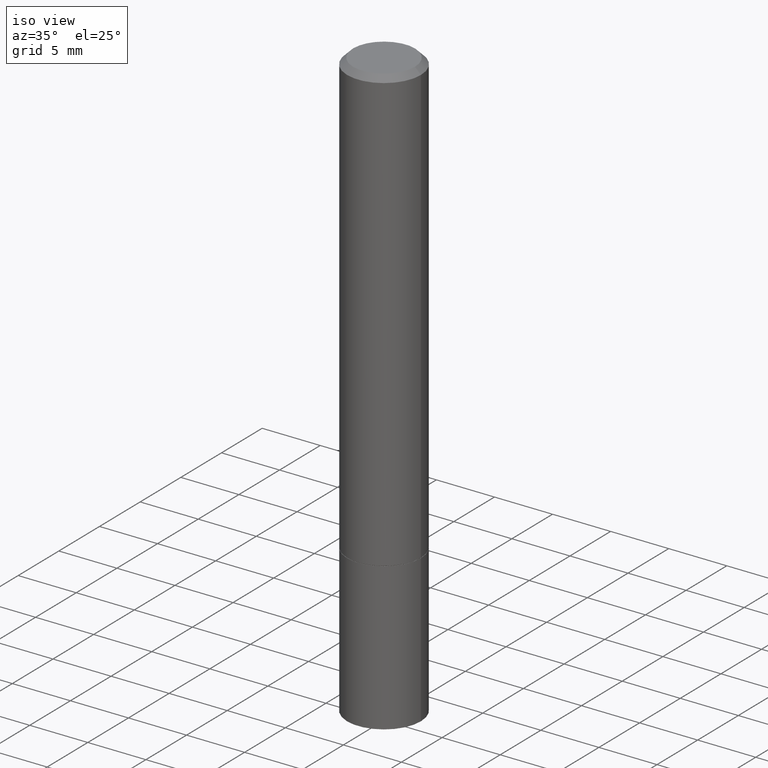
[diagram: clean part render]
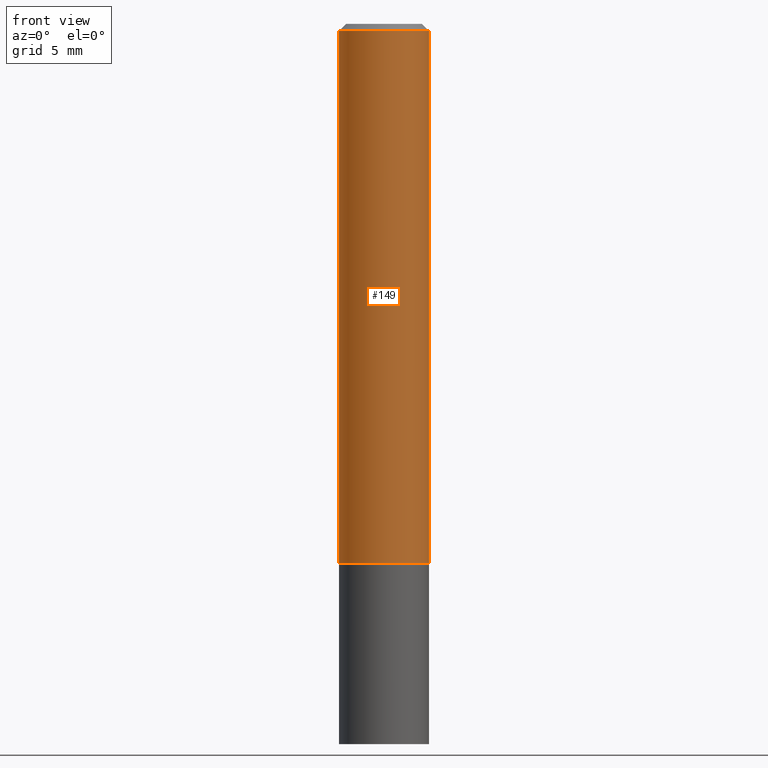
[diagram: tour spotlight — one face highlighted and labeled with its STEP entity id]
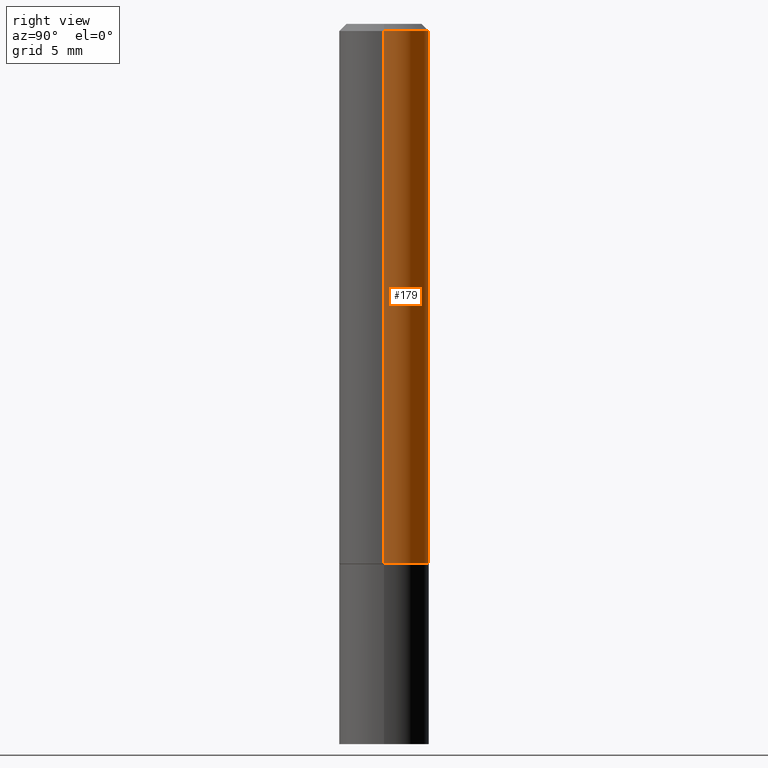
[diagram: tour spotlight — one face highlighted and labeled with its STEP entity id]
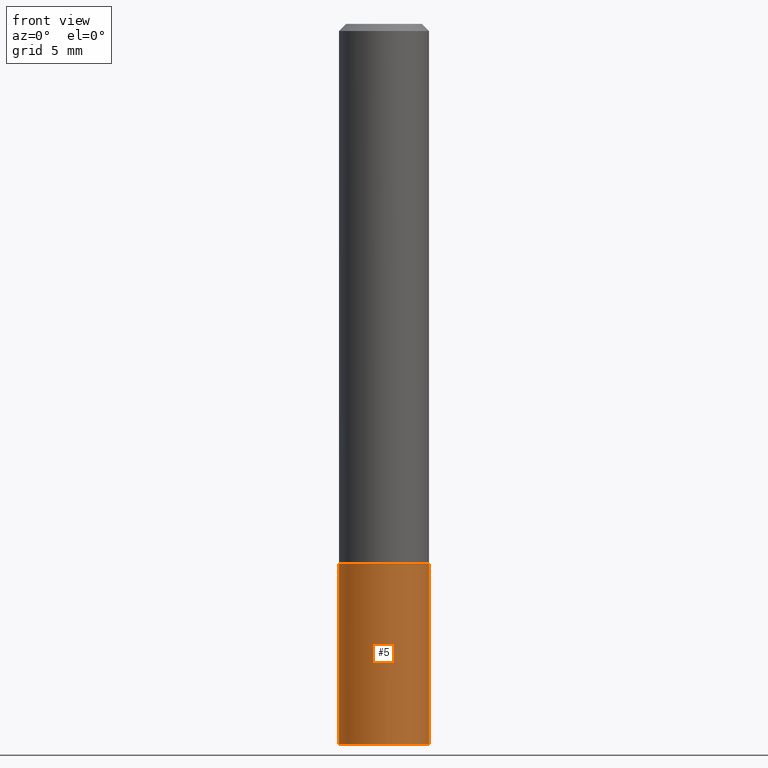
[diagram: tour spotlight — one face highlighted and labeled with its STEP entity id]
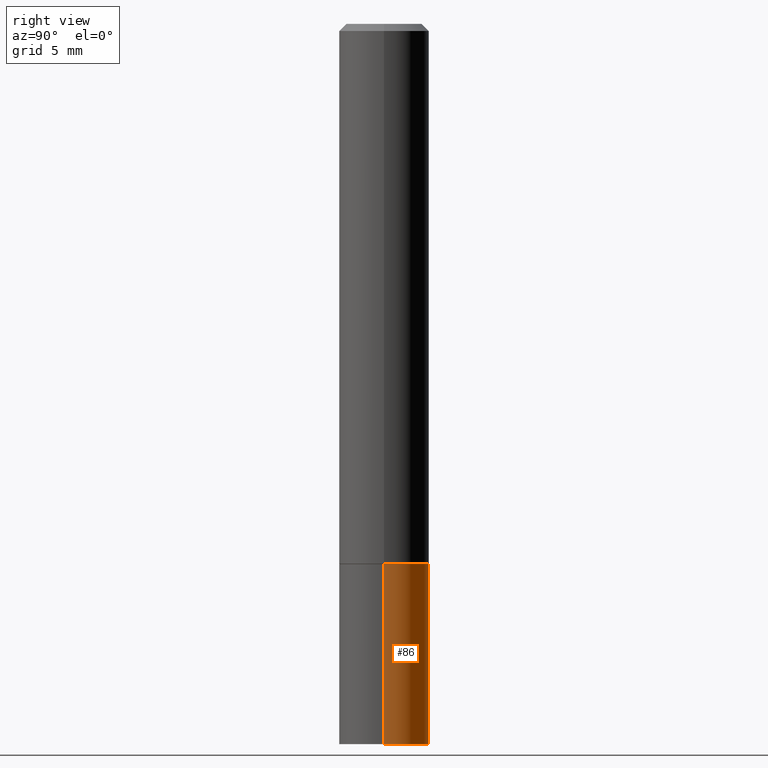
[diagram: tour spotlight — one face highlighted and labeled with its STEP entity id]
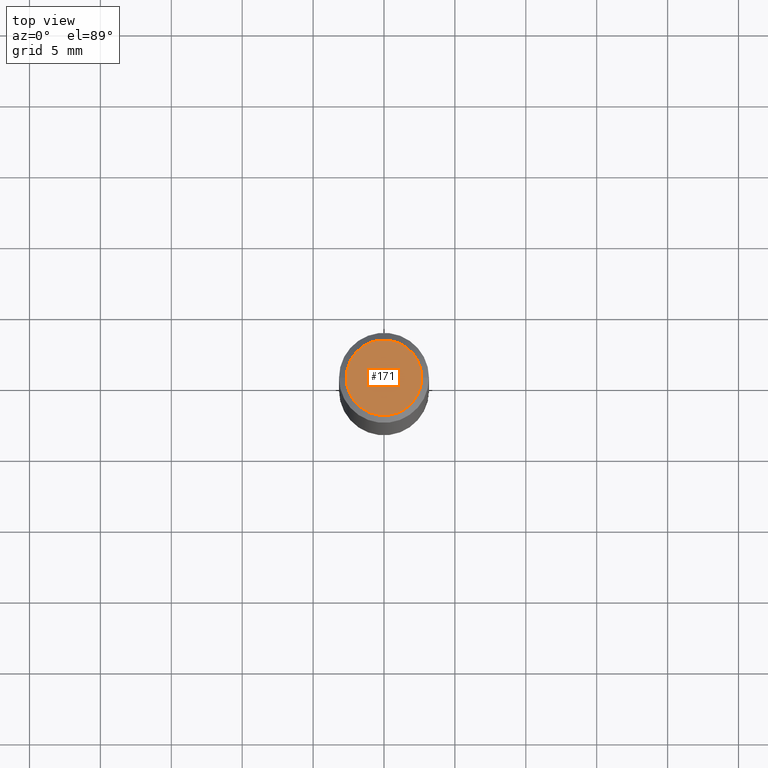
[diagram: tour spotlight — one face highlighted and labeled with its STEP entity id]
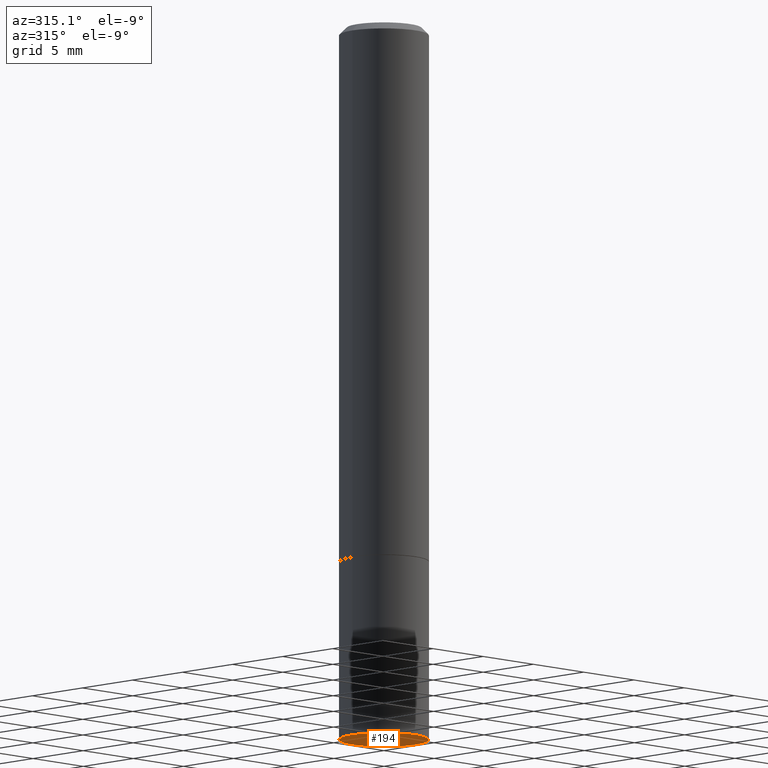
[diagram: tour spotlight — one face highlighted and labeled with its STEP entity id]
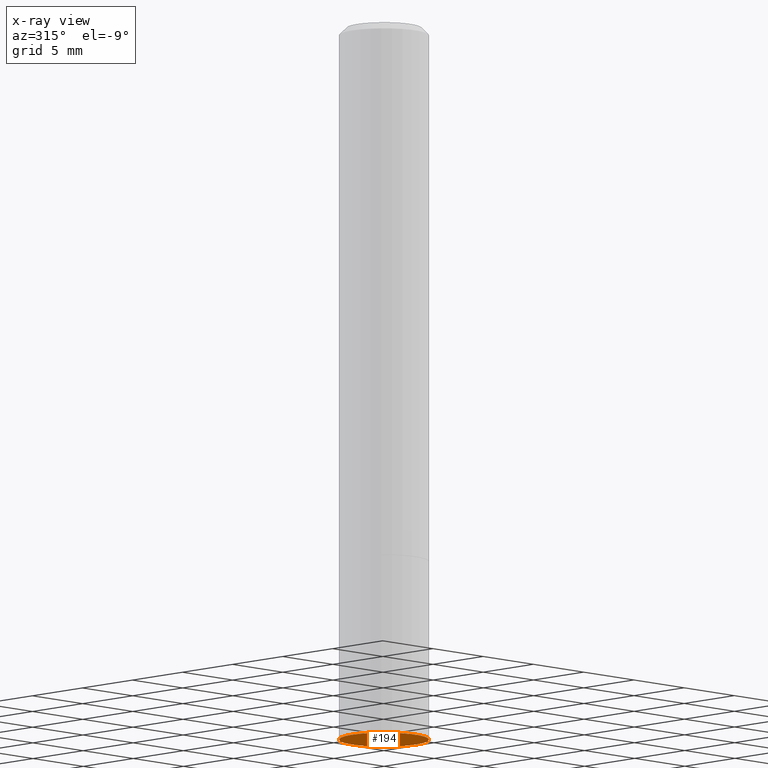
[diagram: x-ray of the same camera — body ghosted, this tour face saturated]
A machine part: a face-by-face anatomy tour. The part has 12 B-rep faces; the first image is the clean iso view, then the 6 largest visible faces are spotlighted one at a time (largest first), each with its STEP entity span.

Face 1 — front view, entity #149. In plain terms, the highlighted cylindrical surface (partial cylindrical patch) has radius 3.175 mm, axis along (-0, 0, 1).
Definition (entity closure, byte-faithful):
#1 = AXIS2_PLACEMENT_3D ( 'NONE', #285, #280, #168 ) ;
#4 = LINE ( 'NONE', #116, #185 ) ;
#6 = FACE_OUTER_BOUND ( 'NONE', #169, .T. ) ;
#7 = ORIENTED_EDGE ( 'NONE', *, *, #37, .T. ) ;
#25 = CARTESIAN_POINT ( 'NONE',  ( 3.665757740471518732E-29, -5.233730526925875170E-15, -1.498999999999999666 ) ) ;
#28 = DIRECTION ( 'NONE',  ( -2.445468806185136597E-29, 3.491481338843145583E-15, 1.000000000000000000 ) ) ;
#36 = AXIS2_PLACEMENT_3D ( 'NONE', #41, #217, #184 ) ;
#37 = EDGE_CURVE ( 'NONE', #39, #329, #174, .T. ) ;
#39 = VERTEX_POINT ( 'NONE', #237 ) ;
#41 = CARTESIAN_POINT ( 'NONE',  ( 0.000000000000000000, 0.000000000000000000, 0.000000000000000000 ) ) ;
#49 = DIRECTION ( 'NONE',  ( 1.000000000000000000, -6.982962677686270655E-15, 0.000000000000000000 ) ) ;
#116 = CARTESIAN_POINT ( 'NONE',  ( 0.1249999999999999167, -8.728703347107827472E-16, 6.095220969744915537E-30 ) ) ;
#122 = CYLINDRICAL_SURFACE ( 'NONE', #36, 0.1249999999999999167 ) ;
#149 = ADVANCED_FACE ( 'NONE', ( #6 ), #122, .T. ) ;
#168 = DIRECTION ( 'NONE',  ( 1.000000000000000000, -6.982962677686266711E-15, 0.000000000000000000 ) ) ;
#169 = EDGE_LOOP ( 'NONE', ( #332, #7, #331, #351 ) ) ;
#174 = CIRCLE ( 'NONE', #326, 0.1250000000000000000 ) ;
#184 = DIRECTION ( 'NONE',  ( 1.000000000000000000, -6.982962677686266711E-15, 4.876176775795935793E-29 ) ) ;
#185 = VECTOR ( 'NONE', #210, 39.37007874015748143 ) ;
#207 = CARTESIAN_POINT ( 'NONE',  ( 0.1250000000000000000, -6.106600861636658508E-15, -1.498999999999999666 ) ) ;
#210 = DIRECTION ( 'NONE',  ( -2.445468806185136877E-29, 3.491481338843145188E-15, 1.000000000000000000 ) ) ;
#217 = DIRECTION ( 'NONE',  ( -2.445468806185136597E-29, 3.491481338843145583E-15, 1.000000000000000000 ) ) ;
#230 = CARTESIAN_POINT ( 'NONE',  ( 0.1249999999999998335, -9.273918764983031658E-16, -0.02000000000000002470 ) ) ;
#232 = VERTEX_POINT ( 'NONE', #230 ) ;
#237 = CARTESIAN_POINT ( 'NONE',  ( -0.1250000000000000000, -1.763601657151241635E-15, -1.498999999999999666 ) ) ;
#252 = CARTESIAN_POINT ( 'NONE',  ( -0.1249999999999999167, 8.881784197001246407E-16, -6.148668862818628023E-30 ) ) ;
#266 = EDGE_CURVE ( 'NONE', #329, #232, #4, .T. ) ;
#280 = DIRECTION ( 'NONE',  ( -2.445468806185136597E-29, 3.491481338843145583E-15, 1.000000000000000000 ) ) ;
#285 = CARTESIAN_POINT ( 'NONE',  ( 4.890937612370279289E-31, -6.982962677686299005E-17, -0.02000000000000002470 ) ) ;
#289 = VECTOR ( 'NONE', #316, 39.37007874015748143 ) ;
#291 = CARTESIAN_POINT ( 'NONE',  ( -0.1249999999999998335, 8.030407079339191532E-16, -0.02000000000000002470 ) ) ;
#294 = CIRCLE ( 'NONE', #1, 0.1249999999999998335 ) ;
#316 = DIRECTION ( 'NONE',  ( -2.445468806185136877E-29, 3.491481338843145188E-15, 1.000000000000000000 ) ) ;
#324 = EDGE_CURVE ( 'NONE', #346, #232, #294, .T. ) ;
#326 = AXIS2_PLACEMENT_3D ( 'NONE', #25, #28, #49 ) ;
#329 = VERTEX_POINT ( 'NONE', #207 ) ;
#331 = ORIENTED_EDGE ( 'NONE', *, *, #266, .T. ) ;
#332 = ORIENTED_EDGE ( 'NONE', *, *, #352, .F. ) ;
#339 = LINE ( 'NONE', #252, #289 ) ;
#346 = VERTEX_POINT ( 'NONE', #291 ) ;
#351 = ORIENTED_EDGE ( 'NONE', *, *, #324, .F. ) ;
#352 = EDGE_CURVE ( 'NONE', #39, #346, #339, .T. ) ;

Face 2 — right view, entity #179. In plain terms, the highlighted cylindrical surface (partial cylindrical patch) has radius 3.175 mm, axis along (-0, 0, 1).
Definition (entity closure, byte-faithful):
#4 = LINE ( 'NONE', #116, #185 ) ;
#39 = VERTEX_POINT ( 'NONE', #237 ) ;
#55 = CYLINDRICAL_SURFACE ( 'NONE', #196, 0.1249999999999999167 ) ;
#69 = DIRECTION ( 'NONE',  ( 1.000000000000000000, -6.982962677686266711E-15, 0.000000000000000000 ) ) ;
#89 = CARTESIAN_POINT ( 'NONE',  ( 0.000000000000000000, 0.000000000000000000, 0.000000000000000000 ) ) ;
#106 = EDGE_CURVE ( 'NONE', #232, #346, #287, .T. ) ;
#116 = CARTESIAN_POINT ( 'NONE',  ( 0.1249999999999999167, -8.728703347107827472E-16, 6.095220969744915537E-30 ) ) ;
#125 = ORIENTED_EDGE ( 'NONE', *, *, #352, .T. ) ;
#129 = DIRECTION ( 'NONE',  ( -2.445468806185136597E-29, 3.491481338843145583E-15, 1.000000000000000000 ) ) ;
#160 = AXIS2_PLACEMENT_3D ( 'NONE', #319, #212, #69 ) ;
#162 = DIRECTION ( 'NONE',  ( 1.000000000000000000, -6.982962677686266711E-15, 4.876176775795935793E-29 ) ) ;
#173 = CARTESIAN_POINT ( 'NONE',  ( 3.665757740471518732E-29, -5.233730526925875170E-15, -1.498999999999999666 ) ) ;
#179 = ADVANCED_FACE ( 'NONE', ( #330 ), #55, .T. ) ;
#182 = ORIENTED_EDGE ( 'NONE', *, *, #106, .F. ) ;
#185 = VECTOR ( 'NONE', #210, 39.37007874015748143 ) ;
#196 = AXIS2_PLACEMENT_3D ( 'NONE', #89, #129, #162 ) ;
#205 = CIRCLE ( 'NONE', #219, 0.1250000000000000000 ) ;
#207 = CARTESIAN_POINT ( 'NONE',  ( 0.1250000000000000000, -6.106600861636658508E-15, -1.498999999999999666 ) ) ;
#210 = DIRECTION ( 'NONE',  ( -2.445468806185136877E-29, 3.491481338843145188E-15, 1.000000000000000000 ) ) ;
#212 = DIRECTION ( 'NONE',  ( -2.445468806185136597E-29, 3.491481338843145583E-15, 1.000000000000000000 ) ) ;
#219 = AXIS2_PLACEMENT_3D ( 'NONE', #173, #286, #262 ) ;
#230 = CARTESIAN_POINT ( 'NONE',  ( 0.1249999999999998335, -9.273918764983031658E-16, -0.02000000000000002470 ) ) ;
#232 = VERTEX_POINT ( 'NONE', #230 ) ;
#237 = CARTESIAN_POINT ( 'NONE',  ( -0.1250000000000000000, -1.763601657151241635E-15, -1.498999999999999666 ) ) ;
#244 = EDGE_CURVE ( 'NONE', #329, #39, #205, .T. ) ;
#252 = CARTESIAN_POINT ( 'NONE',  ( -0.1249999999999999167, 8.881784197001246407E-16, -6.148668862818628023E-30 ) ) ;
#262 = DIRECTION ( 'NONE',  ( 1.000000000000000000, -6.982962677686270655E-15, 0.000000000000000000 ) ) ;
#266 = EDGE_CURVE ( 'NONE', #329, #232, #4, .T. ) ;
#271 = ORIENTED_EDGE ( 'NONE', *, *, #244, .T. ) ;
#284 = ORIENTED_EDGE ( 'NONE', *, *, #266, .F. ) ;
#286 = DIRECTION ( 'NONE',  ( -2.445468806185136597E-29, 3.491481338843145583E-15, 1.000000000000000000 ) ) ;
#287 = CIRCLE ( 'NONE', #160, 0.1249999999999998335 ) ;
#289 = VECTOR ( 'NONE', #316, 39.37007874015748143 ) ;
#291 = CARTESIAN_POINT ( 'NONE',  ( -0.1249999999999998335, 8.030407079339191532E-16, -0.02000000000000002470 ) ) ;
#308 = EDGE_LOOP ( 'NONE', ( #271, #125, #182, #284 ) ) ;
#316 = DIRECTION ( 'NONE',  ( -2.445468806185136877E-29, 3.491481338843145188E-15, 1.000000000000000000 ) ) ;
#319 = CARTESIAN_POINT ( 'NONE',  ( 4.890937612370279289E-31, -6.982962677686299005E-17, -0.02000000000000002470 ) ) ;
#329 = VERTEX_POINT ( 'NONE', #207 ) ;
#330 = FACE_OUTER_BOUND ( 'NONE', #308, .T. ) ;
#339 = LINE ( 'NONE', #252, #289 ) ;
#346 = VERTEX_POINT ( 'NONE', #291 ) ;
#352 = EDGE_CURVE ( 'NONE', #39, #346, #339, .T. ) ;

Face 3 — front view, entity #5. In plain terms, the highlighted cylindrical surface (partial cylindrical patch) has radius 3.175 mm, axis along (-0, 0, 1).
Definition (entity closure, byte-faithful):
#3 = DIRECTION ( 'NONE',  ( 1.000000000000000000, -6.982962677686270655E-15, 0.000000000000000000 ) ) ;
#5 = ADVANCED_FACE ( 'NONE', ( #355 ), #79, .T. ) ;
#9 = VECTOR ( 'NONE', #136, 39.37007874015748143 ) ;
#22 = LINE ( 'NONE', #62, #9 ) ;
#29 = CIRCLE ( 'NONE', #70, 0.1250000000000000000 ) ;
#54 = CARTESIAN_POINT ( 'NONE',  ( 0.1250000000000000000, -6.110092342975501516E-15, -1.499999999999999778 ) ) ;
#56 = VERTEX_POINT ( 'NONE', #54 ) ;
#62 = CARTESIAN_POINT ( 'NONE',  ( 0.1250000000000000000, -8.728703347107833388E-16, 6.095220969744919741E-30 ) ) ;
#63 = DIRECTION ( 'NONE',  ( -2.445468806185136597E-29, 3.491481338843145583E-15, 1.000000000000000000 ) ) ;
#70 = AXIS2_PLACEMENT_3D ( 'NONE', #307, #81, #78 ) ;
#75 = AXIS2_PLACEMENT_3D ( 'NONE', #317, #63, #3 ) ;
#78 = DIRECTION ( 'NONE',  ( 1.000000000000000000, -6.982962677686270655E-15, 0.000000000000000000 ) ) ;
#79 = CYLINDRICAL_SURFACE ( 'NONE', #298, 0.1250000000000000000 ) ;
#81 = DIRECTION ( 'NONE',  ( -2.445468806185136597E-29, 3.491481338843145583E-15, 1.000000000000000000 ) ) ;
#85 = ORIENTED_EDGE ( 'NONE', *, *, #92, .F. ) ;
#92 = EDGE_CURVE ( 'NONE', #349, #138, #198, .T. ) ;
#96 = ORIENTED_EDGE ( 'NONE', *, *, #119, .T. ) ;
#107 = DIRECTION ( 'NONE',  ( -2.445468806185136597E-29, 3.491481338843145583E-15, 1.000000000000000000 ) ) ;
#119 = EDGE_CURVE ( 'NONE', #349, #186, #320, .T. ) ;
#136 = DIRECTION ( 'NONE',  ( -2.445468806185136877E-29, 3.491481338843145188E-15, 1.000000000000000000 ) ) ;
#138 = VERTEX_POINT ( 'NONE', #270 ) ;
#155 = EDGE_CURVE ( 'NONE', #138, #56, #29, .T. ) ;
#157 = ORIENTED_EDGE ( 'NONE', *, *, #155, .F. ) ;
#167 = DIRECTION ( 'NONE',  ( 1.000000000000000000, -6.982962677686266711E-15, 4.876176775795935793E-29 ) ) ;
#186 = VERTEX_POINT ( 'NONE', #278 ) ;
#198 = LINE ( 'NONE', #335, #228 ) ;
#228 = VECTOR ( 'NONE', #255, 39.37007874015748143 ) ;
#255 = DIRECTION ( 'NONE',  ( -2.445468806185136877E-29, 3.491481338843145188E-15, 1.000000000000000000 ) ) ;
#256 = CARTESIAN_POINT ( 'NONE',  ( -0.1250000000000000000, -5.221913923275378650E-15, -2.000000000000000000 ) ) ;
#257 = EDGE_LOOP ( 'NONE', ( #85, #96, #365, #157 ) ) ;
#270 = CARTESIAN_POINT ( 'NONE',  ( -0.1250000000000000000, -5.221913923275378650E-15, -1.499999999999999778 ) ) ;
#278 = CARTESIAN_POINT ( 'NONE',  ( 0.1250000000000000000, -7.855833012397075293E-15, -2.000000000000000000 ) ) ;
#298 = AXIS2_PLACEMENT_3D ( 'NONE', #312, #107, #167 ) ;
#307 = CARTESIAN_POINT ( 'NONE',  ( 3.668203209277704335E-29, -5.237222008264717388E-15, -1.499999999999999778 ) ) ;
#312 = CARTESIAN_POINT ( 'NONE',  ( 0.000000000000000000, 0.000000000000000000, 0.000000000000000000 ) ) ;
#317 = CARTESIAN_POINT ( 'NONE',  ( 4.890937612370273194E-29, -6.982962677686291165E-15, -2.000000000000000000 ) ) ;
#320 = CIRCLE ( 'NONE', #75, 0.1250000000000000000 ) ;
#335 = CARTESIAN_POINT ( 'NONE',  ( -0.1250000000000000000, 8.881784197001252323E-16, -6.148668862818632227E-30 ) ) ;
#349 = VERTEX_POINT ( 'NONE', #256 ) ;
#355 = FACE_OUTER_BOUND ( 'NONE', #257, .T. ) ;
#361 = EDGE_CURVE ( 'NONE', #186, #56, #22, .T. ) ;
#365 = ORIENTED_EDGE ( 'NONE', *, *, #361, .T. ) ;

Face 4 — right view, entity #86. In plain terms, the highlighted cylindrical surface (partial cylindrical patch) has radius 3.175 mm, axis along (-0, 0, 1).
Definition (entity closure, byte-faithful):
#9 = VECTOR ( 'NONE', #136, 39.37007874015748143 ) ;
#18 = CARTESIAN_POINT ( 'NONE',  ( 4.890937612370273194E-29, -6.982962677686291165E-15, -2.000000000000000000 ) ) ;
#21 = FACE_OUTER_BOUND ( 'NONE', #123, .T. ) ;
#22 = LINE ( 'NONE', #62, #9 ) ;
#23 = AXIS2_PLACEMENT_3D ( 'NONE', #277, #227, #250 ) ;
#46 = ORIENTED_EDGE ( 'NONE', *, *, #92, .T. ) ;
#50 = CIRCLE ( 'NONE', #304, 0.1250000000000000000 ) ;
#51 = DIRECTION ( 'NONE',  ( -2.445468806185136597E-29, 3.491481338843145583E-15, 1.000000000000000000 ) ) ;
#54 = CARTESIAN_POINT ( 'NONE',  ( 0.1250000000000000000, -6.110092342975501516E-15, -1.499999999999999778 ) ) ;
#56 = VERTEX_POINT ( 'NONE', #54 ) ;
#62 = CARTESIAN_POINT ( 'NONE',  ( 0.1250000000000000000, -8.728703347107833388E-16, 6.095220969744919741E-30 ) ) ;
#67 = EDGE_CURVE ( 'NONE', #186, #349, #313, .T. ) ;
#86 = ADVANCED_FACE ( 'NONE', ( #21 ), #306, .T. ) ;
#87 = DIRECTION ( 'NONE',  ( 1.000000000000000000, -6.982962677686270655E-15, 0.000000000000000000 ) ) ;
#88 = ORIENTED_EDGE ( 'NONE', *, *, #67, .T. ) ;
#92 = EDGE_CURVE ( 'NONE', #349, #138, #198, .T. ) ;
#123 = EDGE_LOOP ( 'NONE', ( #88, #46, #188, #165 ) ) ;
#136 = DIRECTION ( 'NONE',  ( -2.445468806185136877E-29, 3.491481338843145188E-15, 1.000000000000000000 ) ) ;
#138 = VERTEX_POINT ( 'NONE', #270 ) ;
#145 = AXIS2_PLACEMENT_3D ( 'NONE', #18, #337, #87 ) ;
#165 = ORIENTED_EDGE ( 'NONE', *, *, #361, .F. ) ;
#178 = EDGE_CURVE ( 'NONE', #56, #138, #50, .T. ) ;
#186 = VERTEX_POINT ( 'NONE', #278 ) ;
#188 = ORIENTED_EDGE ( 'NONE', *, *, #178, .F. ) ;
#198 = LINE ( 'NONE', #335, #228 ) ;
#221 = DIRECTION ( 'NONE',  ( 1.000000000000000000, -6.982962677686270655E-15, 0.000000000000000000 ) ) ;
#227 = DIRECTION ( 'NONE',  ( -2.445468806185136597E-29, 3.491481338843145583E-15, 1.000000000000000000 ) ) ;
#228 = VECTOR ( 'NONE', #255, 39.37007874015748143 ) ;
#250 = DIRECTION ( 'NONE',  ( 1.000000000000000000, -6.982962677686266711E-15, 4.876176775795935793E-29 ) ) ;
#255 = DIRECTION ( 'NONE',  ( -2.445468806185136877E-29, 3.491481338843145188E-15, 1.000000000000000000 ) ) ;
#256 = CARTESIAN_POINT ( 'NONE',  ( -0.1250000000000000000, -5.221913923275378650E-15, -2.000000000000000000 ) ) ;
#263 = CARTESIAN_POINT ( 'NONE',  ( 3.668203209277704335E-29, -5.237222008264717388E-15, -1.499999999999999778 ) ) ;
#270 = CARTESIAN_POINT ( 'NONE',  ( -0.1250000000000000000, -5.221913923275378650E-15, -1.499999999999999778 ) ) ;
#277 = CARTESIAN_POINT ( 'NONE',  ( 0.000000000000000000, 0.000000000000000000, 0.000000000000000000 ) ) ;
#278 = CARTESIAN_POINT ( 'NONE',  ( 0.1250000000000000000, -7.855833012397075293E-15, -2.000000000000000000 ) ) ;
#304 = AXIS2_PLACEMENT_3D ( 'NONE', #263, #51, #221 ) ;
#306 = CYLINDRICAL_SURFACE ( 'NONE', #23, 0.1250000000000000000 ) ;
#313 = CIRCLE ( 'NONE', #145, 0.1250000000000000000 ) ;
#335 = CARTESIAN_POINT ( 'NONE',  ( -0.1250000000000000000, 8.881784197001252323E-16, -6.148668862818632227E-30 ) ) ;
#337 = DIRECTION ( 'NONE',  ( -2.445468806185136597E-29, 3.491481338843145583E-15, 1.000000000000000000 ) ) ;
#349 = VERTEX_POINT ( 'NONE', #256 ) ;
#361 = EDGE_CURVE ( 'NONE', #186, #56, #22, .T. ) ;

Face 5 — top view, entity #171. In plain terms, the highlighted planar face has unit normal (0, -0, -1).
Definition (entity closure, byte-faithful):
#12 = CIRCLE ( 'NONE', #238, 0.1049999999999998573 ) ;
#14 = DIRECTION ( 'NONE',  ( -1.000000000000000000, 6.982962677686265922E-15, -4.876176775795935793E-29 ) ) ;
#30 = DIRECTION ( 'NONE',  ( 1.000000000000000000, -6.982962677686265922E-15, 4.876176775795935232E-29 ) ) ;
#65 = DIRECTION ( 'NONE',  ( 1.000000000000000000, -6.982962677686265922E-15, 4.876176775795935232E-29 ) ) ;
#93 = CARTESIAN_POINT ( 'NONE',  ( 0.000000000000000000, 0.000000000000000000, 0.000000000000000000 ) ) ;
#95 = EDGE_CURVE ( 'NONE', #303, #258, #242, .T. ) ;
#98 = ORIENTED_EDGE ( 'NONE', *, *, #95, .T. ) ;
#127 = ORIENTED_EDGE ( 'NONE', *, *, #153, .T. ) ;
#153 = EDGE_CURVE ( 'NONE', #258, #303, #12, .T. ) ;
#171 = ADVANCED_FACE ( 'NONE', ( #282 ), #334, .F. ) ;
#172 = DIRECTION ( 'NONE',  ( -2.445468806185136597E-29, 3.491481338843145583E-15, 1.000000000000000000 ) ) ;
#191 = EDGE_LOOP ( 'NONE', ( #127, #98 ) ) ;
#192 = CARTESIAN_POINT ( 'NONE',  ( 7.332110811570569396E-16, 0.1049999999999998573, -3.666055405785298010E-16 ) ) ;
#238 = AXIS2_PLACEMENT_3D ( 'NONE', #299, #318, #65 ) ;
#239 = CARTESIAN_POINT ( 'NONE',  ( -0.1049999999999998573, 7.681258945454880957E-16, -5.249639473182158869E-30 ) ) ;
#241 = CARTESIAN_POINT ( 'NONE',  ( 0.1049999999999998573, -8.238720831321564811E-16, 5.444276250344142358E-30 ) ) ;
#242 = CIRCLE ( 'NONE', #353, 0.1049999999999998573 ) ;
#258 = VERTEX_POINT ( 'NONE', #239 ) ;
#275 = AXIS2_PLACEMENT_3D ( 'NONE', #192, #357, #14 ) ;
#282 = FACE_OUTER_BOUND ( 'NONE', #191, .T. ) ;
#299 = CARTESIAN_POINT ( 'NONE',  ( 0.000000000000000000, 0.000000000000000000, 0.000000000000000000 ) ) ;
#303 = VERTEX_POINT ( 'NONE', #241 ) ;
#318 = DIRECTION ( 'NONE',  ( -2.445468806185136597E-29, 3.491481338843145583E-15, 1.000000000000000000 ) ) ;
#334 = PLANE ( 'NONE',  #275 ) ;
#353 = AXIS2_PLACEMENT_3D ( 'NONE', #93, #172, #30 ) ;
#357 = DIRECTION ( 'NONE',  ( 2.438088387897960049E-29, -3.491481338843145188E-15, -1.000000000000000000 ) ) ;

Face 6 — auxiliary view, entity #194. An x-ray twin of the same camera follows (body ghosted, this face saturated) — the face is partly hidden behind the body. In plain terms, the highlighted planar face has unit normal (0, -0, -1).
Definition (entity closure, byte-faithful):
#3 = DIRECTION ( 'NONE',  ( 1.000000000000000000, -6.982962677686270655E-15, 0.000000000000000000 ) ) ;
#18 = CARTESIAN_POINT ( 'NONE',  ( 4.890937612370273194E-29, -6.982962677686291165E-15, -2.000000000000000000 ) ) ;
#63 = DIRECTION ( 'NONE',  ( -2.445468806185136597E-29, 3.491481338843145583E-15, 1.000000000000000000 ) ) ;
#67 = EDGE_CURVE ( 'NONE', #186, #349, #313, .T. ) ;
#75 = AXIS2_PLACEMENT_3D ( 'NONE', #317, #63, #3 ) ;
#77 = FACE_OUTER_BOUND ( 'NONE', #363, .T. ) ;
#87 = DIRECTION ( 'NONE',  ( 1.000000000000000000, -6.982962677686270655E-15, 0.000000000000000000 ) ) ;
#119 = EDGE_CURVE ( 'NONE', #349, #186, #320, .T. ) ;
#131 = PLANE ( 'NONE',  #347 ) ;
#145 = AXIS2_PLACEMENT_3D ( 'NONE', #18, #337, #87 ) ;
#180 = ORIENTED_EDGE ( 'NONE', *, *, #67, .F. ) ;
#186 = VERTEX_POINT ( 'NONE', #278 ) ;
#189 = DIRECTION ( 'NONE',  ( 2.438088387897960049E-29, -3.491481338843145188E-15, -1.000000000000000000 ) ) ;
#194 = ADVANCED_FACE ( 'NONE', ( #77 ), #131, .T. ) ;
#249 = CARTESIAN_POINT ( 'NONE',  ( 8.728703347108321496E-16, 0.1249999999999930195, -2.000000000000000444 ) ) ;
#256 = CARTESIAN_POINT ( 'NONE',  ( -0.1250000000000000000, -5.221913923275378650E-15, -2.000000000000000000 ) ) ;
#278 = CARTESIAN_POINT ( 'NONE',  ( 0.1250000000000000000, -7.855833012397075293E-15, -2.000000000000000000 ) ) ;
#295 = ORIENTED_EDGE ( 'NONE', *, *, #119, .F. ) ;
#302 = DIRECTION ( 'NONE',  ( -1.000000000000000000, 6.982962677686265922E-15, -4.876176775795935793E-29 ) ) ;
#313 = CIRCLE ( 'NONE', #145, 0.1250000000000000000 ) ;
#317 = CARTESIAN_POINT ( 'NONE',  ( 4.890937612370273194E-29, -6.982962677686291165E-15, -2.000000000000000000 ) ) ;
#320 = CIRCLE ( 'NONE', #75, 0.1250000000000000000 ) ;
#337 = DIRECTION ( 'NONE',  ( -2.445468806185136597E-29, 3.491481338843145583E-15, 1.000000000000000000 ) ) ;
#347 = AXIS2_PLACEMENT_3D ( 'NONE', #249, #189, #302 ) ;
#349 = VERTEX_POINT ( 'NONE', #256 ) ;
#363 = EDGE_LOOP ( 'NONE', ( #180, #295 ) ) ;